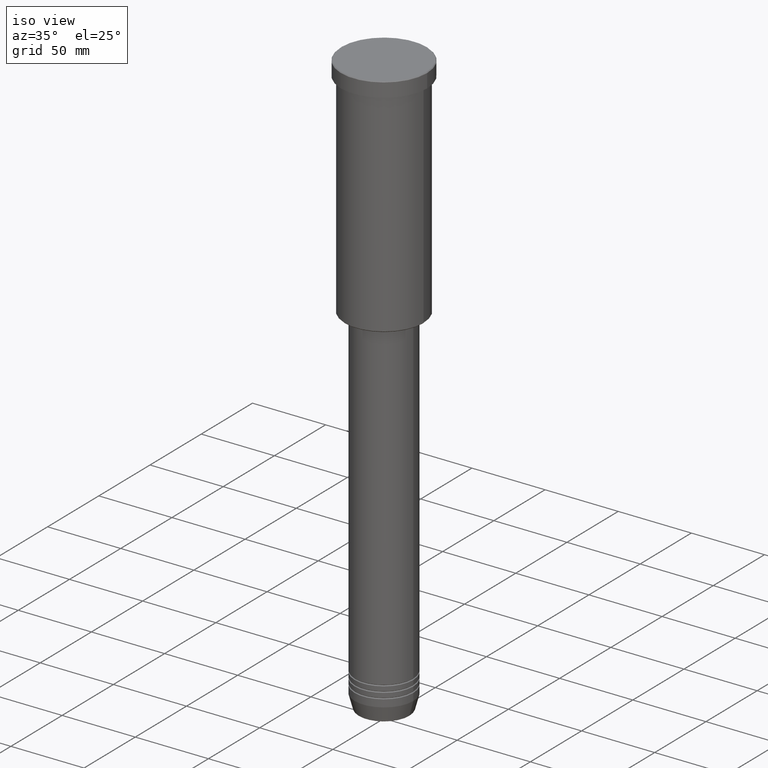
[diagram: clean part render]
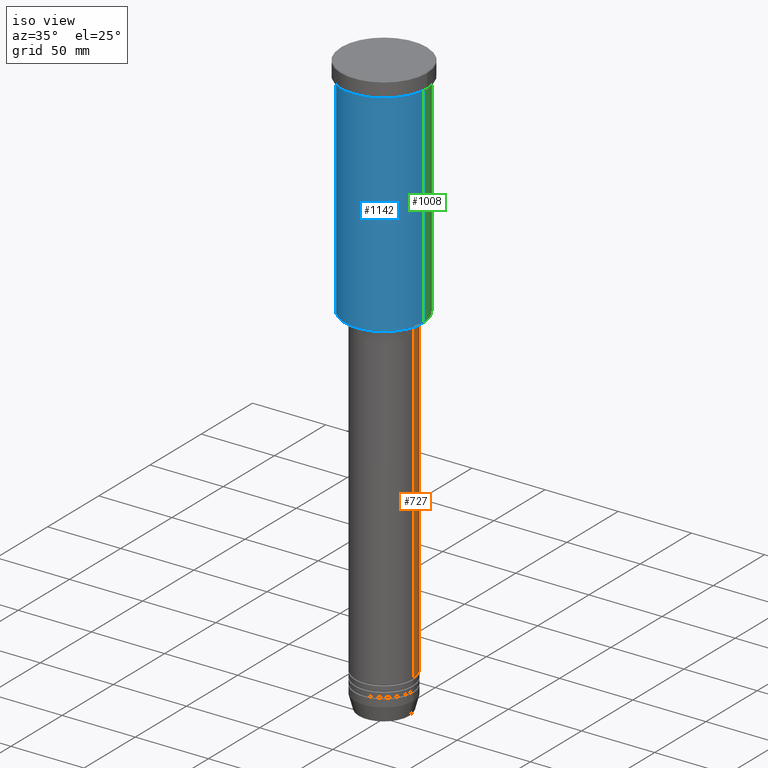
[diagram: same view with three faces highlighted in distinct colors, each labeled with its STEP entity id]
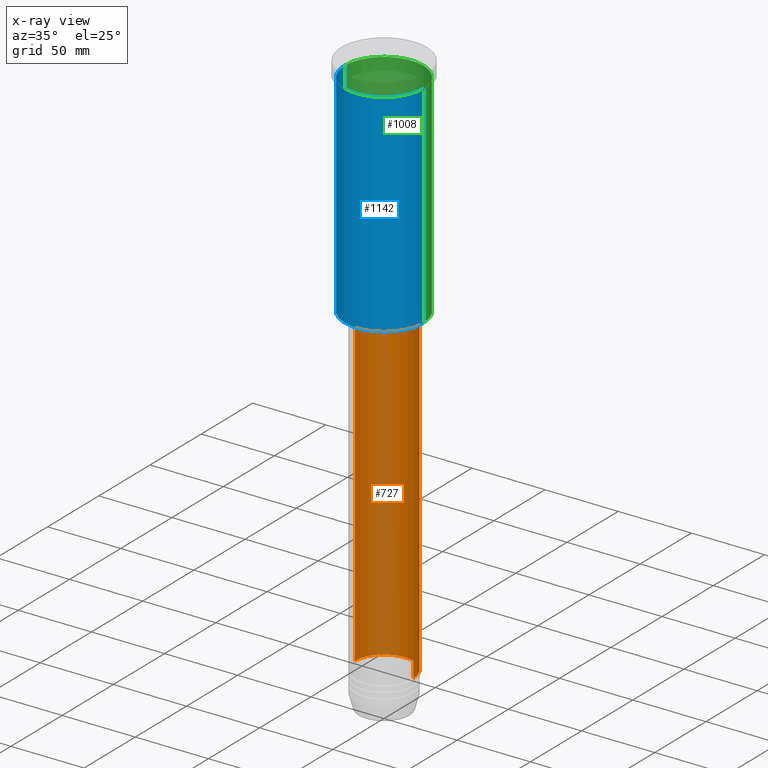
[diagram: x-ray of the same camera — body ghosted, the three highlighted faces saturated]
A machine part, iso view with three faces highlighted in distinct colors.
The next image is the same camera in x-ray (body ghosted, the three faces saturated) — at least one of them is partly hidden behind the body in this view.
Their STEP definitions:

[orange] entity #727 — the highlighted cylindrical surface (edge-blend (fillet) strip) has radius 20 mm, axis along (-0, -0, 1).
#27 = DIRECTION ( 'NONE',  ( -0.000000000000000000, -0.000000000000000000, 1.000000000000000000 ) ) ;
#37 = AXIS2_PLACEMENT_3D ( 'NONE', #1005, #499, #951 ) ;
#41 = DIRECTION ( 'NONE',  ( 1.000000000000000000, 0.000000000000000000, 0.000000000000000000 ) ) ;
#85 = ORIENTED_EDGE ( 'NONE', *, *, #1108, .F. ) ;
#109 = CARTESIAN_POINT ( 'NONE',  ( 20.00000000000000000, 0.000000000000000000, -376.9999999999998863 ) ) ;
#141 = CYLINDRICAL_SURFACE ( 'NONE', #442, 19.99999999999999645 ) ;
#147 = CARTESIAN_POINT ( 'NONE',  ( 0.000000000000000000, 0.000000000000000000, 0.000000000000000000 ) ) ;
#165 = VERTEX_POINT ( 'NONE', #856 ) ;
#183 = CARTESIAN_POINT ( 'NONE',  ( -19.99999999999999645, 2.449293598294706119E-15, 0.000000000000000000 ) ) ;
#199 = DIRECTION ( 'NONE',  ( -0.000000000000000000, -0.000000000000000000, 1.000000000000000000 ) ) ;
#202 = LINE ( 'NONE', #183, #748 ) ;
#222 = DIRECTION ( 'NONE',  ( 1.000000000000000000, 0.000000000000000000, 0.000000000000000000 ) ) ;
#244 = CARTESIAN_POINT ( 'NONE',  ( 0.000000000000000000, 0.000000000000000000, -376.9999999999998863 ) ) ;
#327 = CIRCLE ( 'NONE', #567, 20.00000000000000000 ) ;
#340 = DIRECTION ( 'NONE',  ( -0.000000000000000000, -0.000000000000000000, 1.000000000000000000 ) ) ;
#394 = VERTEX_POINT ( 'NONE', #988 ) ;
#440 = DIRECTION ( 'NONE',  ( -0.000000000000000000, -0.000000000000000000, 1.000000000000000000 ) ) ;
#442 = AXIS2_PLACEMENT_3D ( 'NONE', #147, #27, #41 ) ;
#472 = VERTEX_POINT ( 'NONE', #109 ) ;
#499 = DIRECTION ( 'NONE',  ( -0.000000000000000000, -0.000000000000000000, 1.000000000000000000 ) ) ;
#528 = EDGE_CURVE ( 'NONE', #1106, #394, #202, .T. ) ;
#567 = AXIS2_PLACEMENT_3D ( 'NONE', #244, #340, #222 ) ;
#622 = CIRCLE ( 'NONE', #37, 19.99999999999999645 ) ;
#677 = VECTOR ( 'NONE', #440, 1000.000000000000000 ) ;
#712 = ORIENTED_EDGE ( 'NONE', *, *, #528, .T. ) ;
#727 = ADVANCED_FACE ( 'NONE', ( #929 ), #141, .T. ) ;
#748 = VECTOR ( 'NONE', #199, 1000.000000000000000 ) ;
#787 = LINE ( 'NONE', #857, #677 ) ;
#852 = ORIENTED_EDGE ( 'NONE', *, *, #870, .F. ) ;
#856 = CARTESIAN_POINT ( 'NONE',  ( 19.99999999999999645, 0.000000000000000000, -156.9999999999998863 ) ) ;
#857 = CARTESIAN_POINT ( 'NONE',  ( 19.99999999999999645, 0.000000000000000000, 0.000000000000000000 ) ) ;
#870 = EDGE_CURVE ( 'NONE', #472, #165, #787, .T. ) ;
#929 = FACE_OUTER_BOUND ( 'NONE', #1050, .T. ) ;
#951 = DIRECTION ( 'NONE',  ( 1.000000000000000000, 0.000000000000000000, 0.000000000000000000 ) ) ;
#953 = CARTESIAN_POINT ( 'NONE',  ( -20.00000000000000000, 2.449293598294706513E-15, -376.9999999999998863 ) ) ;
#988 = CARTESIAN_POINT ( 'NONE',  ( -19.99999999999999645, 2.449293598294706119E-15, -156.9999999999998863 ) ) ;
#1005 = CARTESIAN_POINT ( 'NONE',  ( 0.000000000000000000, 0.000000000000000000, -156.9999999999998863 ) ) ;
#1050 = EDGE_LOOP ( 'NONE', ( #1166, #712, #85, #852 ) ) ;
#1092 = EDGE_CURVE ( 'NONE', #472, #1106, #327, .T. ) ;
#1106 = VERTEX_POINT ( 'NONE', #953 ) ;
#1108 = EDGE_CURVE ( 'NONE', #165, #394, #622, .T. ) ;
#1166 = ORIENTED_EDGE ( 'NONE', *, *, #1092, .T. ) ;

[blue] entity #1142 — the highlighted cylindrical surface (partial cylindrical patch) has radius 27 mm, axis along (-0, -0, 1).
#3 = CARTESIAN_POINT ( 'NONE',  ( 0.000000000000000000, 0.000000000000000000, -10.99999999999999289 ) ) ;
#43 = EDGE_CURVE ( 'NONE', #745, #650, #101, .T. ) ;
#65 = CIRCLE ( 'NONE', #211, 27.00000000000000355 ) ;
#73 = DIRECTION ( 'NONE',  ( -0.000000000000000000, -0.000000000000000000, 1.000000000000000000 ) ) ;
#101 = LINE ( 'NONE', #850, #1165 ) ;
#195 = AXIS2_PLACEMENT_3D ( 'NONE', #936, #1133, #1036 ) ;
#211 = AXIS2_PLACEMENT_3D ( 'NONE', #705, #351, #600 ) ;
#279 = DIRECTION ( 'NONE',  ( -0.000000000000000000, -0.000000000000000000, 1.000000000000000000 ) ) ;
#304 = AXIS2_PLACEMENT_3D ( 'NONE', #3, #279, #632 ) ;
#310 = ORIENTED_EDGE ( 'NONE', *, *, #43, .T. ) ;
#351 = DIRECTION ( 'NONE',  ( -0.000000000000000000, -0.000000000000000000, 1.000000000000000000 ) ) ;
#354 = EDGE_CURVE ( 'NONE', #896, #745, #65, .T. ) ;
#379 = CARTESIAN_POINT ( 'NONE',  ( -27.00000000000000355, 3.306546357697854128E-15, -155.5000000000000000 ) ) ;
#387 = CARTESIAN_POINT ( 'NONE',  ( -27.00000000000000355, 3.306546357697854128E-15, -10.99999999999999289 ) ) ;
#448 = CARTESIAN_POINT ( 'NONE',  ( -27.00000000000000355, 3.306546357697854128E-15, 0.000000000000000000 ) ) ;
#463 = ORIENTED_EDGE ( 'NONE', *, *, #789, .F. ) ;
#479 = VERTEX_POINT ( 'NONE', #387 ) ;
#490 = ORIENTED_EDGE ( 'NONE', *, *, #354, .T. ) ;
#565 = CIRCLE ( 'NONE', #304, 27.00000000000000355 ) ;
#582 = FACE_OUTER_BOUND ( 'NONE', #588, .T. ) ;
#583 = EDGE_CURVE ( 'NONE', #479, #650, #565, .T. ) ;
#588 = EDGE_LOOP ( 'NONE', ( #463, #490, #310, #646 ) ) ;
#600 = DIRECTION ( 'NONE',  ( -1.000000000000000000, 0.000000000000000000, 0.000000000000000000 ) ) ;
#611 = LINE ( 'NONE', #448, #621 ) ;
#621 = VECTOR ( 'NONE', #73, 1000.000000000000000 ) ;
#632 = DIRECTION ( 'NONE',  ( 1.000000000000000000, 0.000000000000000000, 0.000000000000000000 ) ) ;
#646 = ORIENTED_EDGE ( 'NONE', *, *, #583, .F. ) ;
#650 = VERTEX_POINT ( 'NONE', #934 ) ;
#705 = CARTESIAN_POINT ( 'NONE',  ( 0.000000000000000000, 0.000000000000000000, -155.5000000000000000 ) ) ;
#745 = VERTEX_POINT ( 'NONE', #1020 ) ;
#781 = DIRECTION ( 'NONE',  ( -0.000000000000000000, -0.000000000000000000, 1.000000000000000000 ) ) ;
#789 = EDGE_CURVE ( 'NONE', #896, #479, #611, .T. ) ;
#850 = CARTESIAN_POINT ( 'NONE',  ( 27.00000000000000355, 0.000000000000000000, 0.000000000000000000 ) ) ;
#854 = CYLINDRICAL_SURFACE ( 'NONE', #195, 27.00000000000000355 ) ;
#896 = VERTEX_POINT ( 'NONE', #379 ) ;
#934 = CARTESIAN_POINT ( 'NONE',  ( 27.00000000000000355, 0.000000000000000000, -10.99999999999999289 ) ) ;
#936 = CARTESIAN_POINT ( 'NONE',  ( 0.000000000000000000, 0.000000000000000000, 0.000000000000000000 ) ) ;
#1020 = CARTESIAN_POINT ( 'NONE',  ( 27.00000000000000355, 0.000000000000000000, -155.5000000000000000 ) ) ;
#1036 = DIRECTION ( 'NONE',  ( 1.000000000000000000, 0.000000000000000000, 0.000000000000000000 ) ) ;
#1133 = DIRECTION ( 'NONE',  ( -0.000000000000000000, -0.000000000000000000, 1.000000000000000000 ) ) ;
#1142 = ADVANCED_FACE ( 'NONE', ( #582 ), #854, .T. ) ;
#1165 = VECTOR ( 'NONE', #781, 1000.000000000000000 ) ;

[green] entity #1008 — the highlighted cylindrical surface (partial cylindrical patch) has radius 27 mm, axis along (-0, -0, 1).
#43 = EDGE_CURVE ( 'NONE', #745, #650, #101, .T. ) ;
#59 = EDGE_CURVE ( 'NONE', #650, #479, #178, .T. ) ;
#73 = DIRECTION ( 'NONE',  ( -0.000000000000000000, -0.000000000000000000, 1.000000000000000000 ) ) ;
#91 = ORIENTED_EDGE ( 'NONE', *, *, #43, .F. ) ;
#101 = LINE ( 'NONE', #850, #1165 ) ;
#129 = FACE_OUTER_BOUND ( 'NONE', #905, .T. ) ;
#139 = AXIS2_PLACEMENT_3D ( 'NONE', #493, #406, #842 ) ;
#178 = CIRCLE ( 'NONE', #139, 27.00000000000000355 ) ;
#201 = CARTESIAN_POINT ( 'NONE',  ( 0.000000000000000000, 0.000000000000000000, 0.000000000000000000 ) ) ;
#221 = ORIENTED_EDGE ( 'NONE', *, *, #59, .F. ) ;
#326 = DIRECTION ( 'NONE',  ( -0.000000000000000000, -0.000000000000000000, 1.000000000000000000 ) ) ;
#379 = CARTESIAN_POINT ( 'NONE',  ( -27.00000000000000355, 3.306546357697854128E-15, -155.5000000000000000 ) ) ;
#387 = CARTESIAN_POINT ( 'NONE',  ( -27.00000000000000355, 3.306546357697854128E-15, -10.99999999999999289 ) ) ;
#406 = DIRECTION ( 'NONE',  ( -0.000000000000000000, -0.000000000000000000, 1.000000000000000000 ) ) ;
#423 = DIRECTION ( 'NONE',  ( 1.000000000000000000, 0.000000000000000000, 0.000000000000000000 ) ) ;
#448 = CARTESIAN_POINT ( 'NONE',  ( -27.00000000000000355, 3.306546357697854128E-15, 0.000000000000000000 ) ) ;
#479 = VERTEX_POINT ( 'NONE', #387 ) ;
#493 = CARTESIAN_POINT ( 'NONE',  ( 0.000000000000000000, 0.000000000000000000, -10.99999999999999289 ) ) ;
#516 = CARTESIAN_POINT ( 'NONE',  ( 0.000000000000000000, 0.000000000000000000, -155.5000000000000000 ) ) ;
#611 = LINE ( 'NONE', #448, #621 ) ;
#621 = VECTOR ( 'NONE', #73, 1000.000000000000000 ) ;
#650 = VERTEX_POINT ( 'NONE', #934 ) ;
#680 = CYLINDRICAL_SURFACE ( 'NONE', #1100, 27.00000000000000355 ) ;
#698 = AXIS2_PLACEMENT_3D ( 'NONE', #516, #326, #1154 ) ;
#745 = VERTEX_POINT ( 'NONE', #1020 ) ;
#774 = DIRECTION ( 'NONE',  ( -0.000000000000000000, -0.000000000000000000, 1.000000000000000000 ) ) ;
#781 = DIRECTION ( 'NONE',  ( -0.000000000000000000, -0.000000000000000000, 1.000000000000000000 ) ) ;
#789 = EDGE_CURVE ( 'NONE', #896, #479, #611, .T. ) ;
#842 = DIRECTION ( 'NONE',  ( 1.000000000000000000, 0.000000000000000000, 0.000000000000000000 ) ) ;
#850 = CARTESIAN_POINT ( 'NONE',  ( 27.00000000000000355, 0.000000000000000000, 0.000000000000000000 ) ) ;
#878 = ORIENTED_EDGE ( 'NONE', *, *, #1132, .T. ) ;
#896 = VERTEX_POINT ( 'NONE', #379 ) ;
#905 = EDGE_LOOP ( 'NONE', ( #878, #1091, #221, #91 ) ) ;
#919 = CIRCLE ( 'NONE', #698, 27.00000000000000355 ) ;
#934 = CARTESIAN_POINT ( 'NONE',  ( 27.00000000000000355, 0.000000000000000000, -10.99999999999999289 ) ) ;
#1008 = ADVANCED_FACE ( 'NONE', ( #129 ), #680, .T. ) ;
#1020 = CARTESIAN_POINT ( 'NONE',  ( 27.00000000000000355, 0.000000000000000000, -155.5000000000000000 ) ) ;
#1091 = ORIENTED_EDGE ( 'NONE', *, *, #789, .T. ) ;
#1100 = AXIS2_PLACEMENT_3D ( 'NONE', #201, #774, #423 ) ;
#1132 = EDGE_CURVE ( 'NONE', #745, #896, #919, .T. ) ;
#1154 = DIRECTION ( 'NONE',  ( -1.000000000000000000, 0.000000000000000000, 0.000000000000000000 ) ) ;
#1165 = VECTOR ( 'NONE', #781, 1000.000000000000000 ) ;